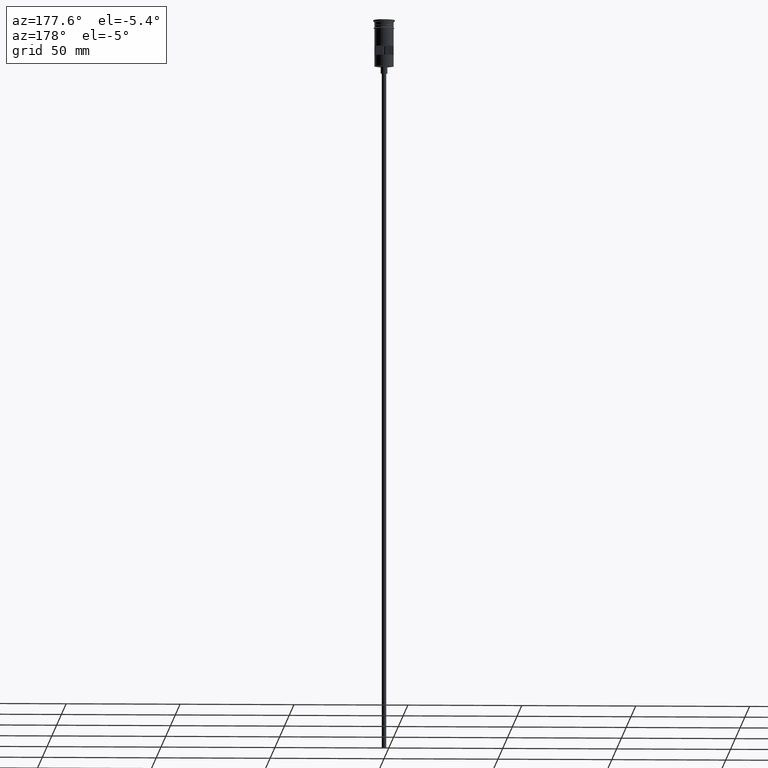
[diagram: clean part render]
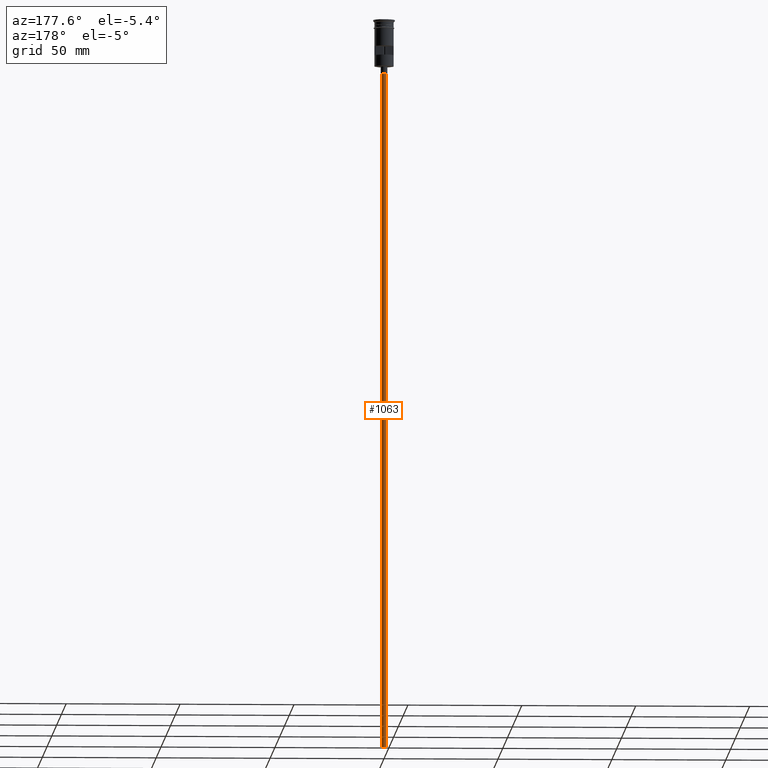
[diagram: same view with one face highlighted and labeled with its STEP entity id]
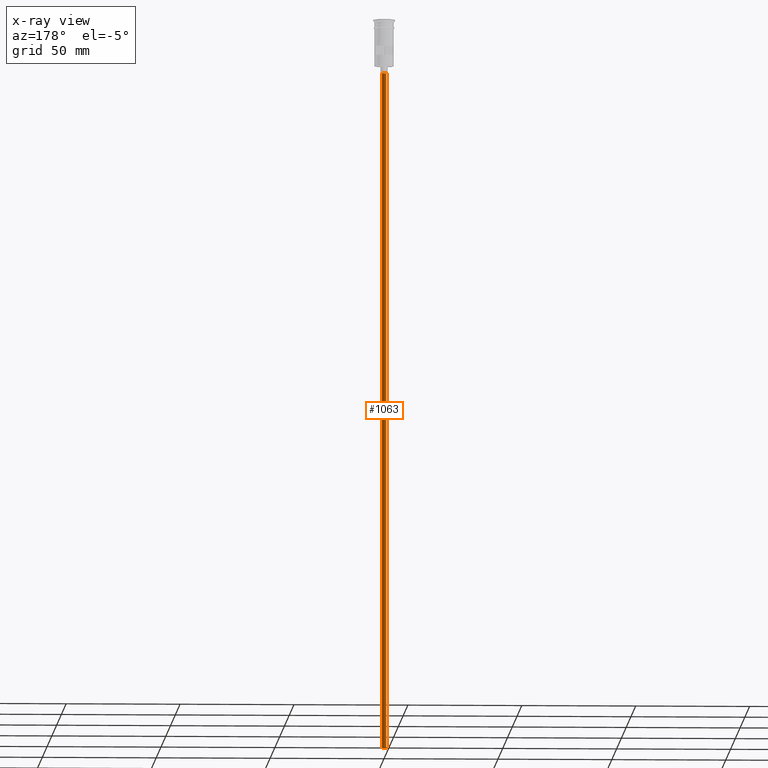
[diagram: x-ray of the same camera — body ghosted, the highlighted face saturated]
A machine part, auxiliary view. The second image highlights one B-rep face of the part: STEP entity #1063.
The next image is the same camera in x-ray: the body ghosted, the highlighted face saturated — about 0% of this face is hidden behind the body in this view.
In plain terms, the highlighted cylindrical surface (edge-blend (fillet) strip) has radius 1 mm, axis along (-0, -0, 1).
Its self-contained STEP definition (entity closure, byte-faithful):
#38 = LINE ( 'NONE', #535, #1033 ) ;
#92 = CARTESIAN_POINT ( 'NONE',  ( 0.9999999999999997780, 0.000000000000000000, -23.49999999999999645 ) ) ;
#157 = EDGE_CURVE ( 'NONE', #1136, #711, #611, .T. ) ;
#341 = DIRECTION ( 'NONE',  ( -1.000000000000000000, 0.000000000000000000, 0.000000000000000000 ) ) ;
#342 = DIRECTION ( 'NONE',  ( -1.000000000000000000, 0.000000000000000000, 0.000000000000000000 ) ) ;
#359 = EDGE_LOOP ( 'NONE', ( #768, #1078, #951, #1123 ) ) ;
#439 = CARTESIAN_POINT ( 'NONE',  ( 0.9999999999999997780, 0.000000000000000000, -320.5000000000000000 ) ) ;
#447 = CIRCLE ( 'NONE', #645, 0.9999999999999997780 ) ;
#468 = CYLINDRICAL_SURFACE ( 'NONE', #996, 0.9999999999999997780 ) ;
#475 = DIRECTION ( 'NONE',  ( 1.000000000000000000, 0.000000000000000000, 0.000000000000000000 ) ) ;
#535 = CARTESIAN_POINT ( 'NONE',  ( 0.9999999999999997780, 0.000000000000000000, -320.5000000000000000 ) ) ;
#611 = LINE ( 'NONE', #886, #868 ) ;
#642 = CARTESIAN_POINT ( 'NONE',  ( -0.9999999999999997780, 1.224646799147352961E-16, -23.49999999999999645 ) ) ;
#645 = AXIS2_PLACEMENT_3D ( 'NONE', #1229, #1469, #341 ) ;
#673 = EDGE_CURVE ( 'NONE', #711, #1091, #1011, .T. ) ;
#711 = VERTEX_POINT ( 'NONE', #642 ) ;
#758 = CARTESIAN_POINT ( 'NONE',  ( -0.9999999999999997780, 1.224646799147352961E-16, -320.5000000000000000 ) ) ;
#768 = ORIENTED_EDGE ( 'NONE', *, *, #981, .F. ) ;
#794 = VERTEX_POINT ( 'NONE', #439 ) ;
#823 = EDGE_CURVE ( 'NONE', #794, #1091, #38, .T. ) ;
#864 = CARTESIAN_POINT ( 'NONE',  ( 0.000000000000000000, 0.000000000000000000, -320.5000000000000000 ) ) ;
#868 = VECTOR ( 'NONE', #1104, 1000.000000000000000 ) ;
#886 = CARTESIAN_POINT ( 'NONE',  ( -0.9999999999999997780, 1.224646799147352961E-16, -320.5000000000000000 ) ) ;
#938 = DIRECTION ( 'NONE',  ( 0.000000000000000000, 0.000000000000000000, -1.000000000000000000 ) ) ;
#951 = ORIENTED_EDGE ( 'NONE', *, *, #673, .T. ) ;
#981 = EDGE_CURVE ( 'NONE', #1136, #794, #447, .T. ) ;
#996 = AXIS2_PLACEMENT_3D ( 'NONE', #864, #1216, #475 ) ;
#1011 = CIRCLE ( 'NONE', #1552, 0.9999999999999997780 ) ;
#1033 = VECTOR ( 'NONE', #1521, 1000.000000000000000 ) ;
#1063 = ADVANCED_FACE ( 'NONE', ( #1343 ), #468, .T. ) ;
#1078 = ORIENTED_EDGE ( 'NONE', *, *, #157, .T. ) ;
#1091 = VERTEX_POINT ( 'NONE', #92 ) ;
#1104 = DIRECTION ( 'NONE',  ( -0.000000000000000000, -0.000000000000000000, 1.000000000000000000 ) ) ;
#1123 = ORIENTED_EDGE ( 'NONE', *, *, #823, .F. ) ;
#1136 = VERTEX_POINT ( 'NONE', #758 ) ;
#1216 = DIRECTION ( 'NONE',  ( -0.000000000000000000, -0.000000000000000000, 1.000000000000000000 ) ) ;
#1229 = CARTESIAN_POINT ( 'NONE',  ( 0.000000000000000000, 0.000000000000000000, -320.5000000000000000 ) ) ;
#1343 = FACE_OUTER_BOUND ( 'NONE', #359, .T. ) ;
#1428 = CARTESIAN_POINT ( 'NONE',  ( 0.000000000000000000, 0.000000000000000000, -23.49999999999999645 ) ) ;
#1469 = DIRECTION ( 'NONE',  ( 0.000000000000000000, 0.000000000000000000, -1.000000000000000000 ) ) ;
#1521 = DIRECTION ( 'NONE',  ( -0.000000000000000000, -0.000000000000000000, 1.000000000000000000 ) ) ;
#1552 = AXIS2_PLACEMENT_3D ( 'NONE', #1428, #938, #342 ) ;